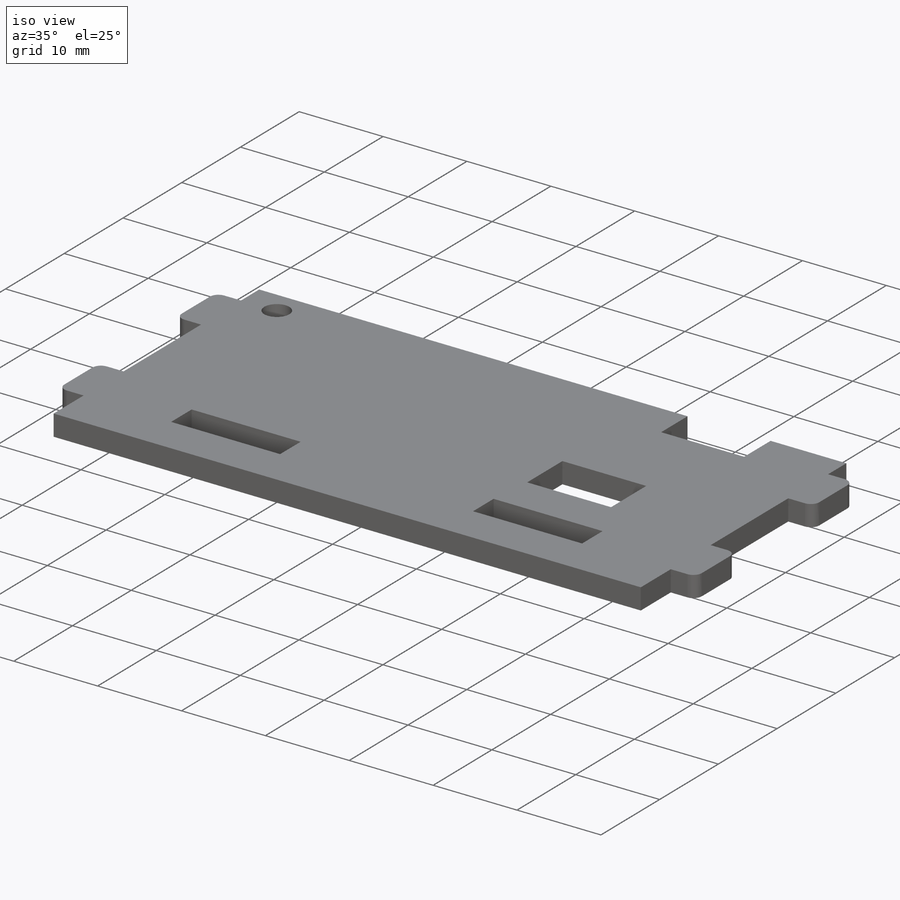
[diagram: iso view]
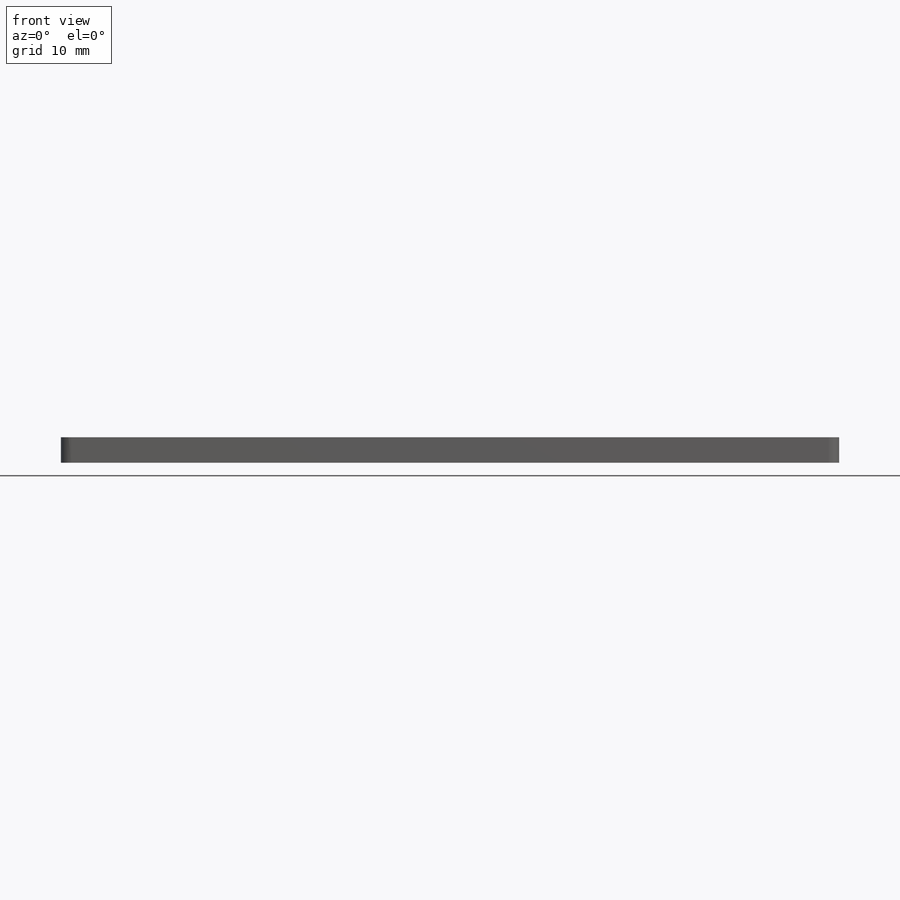
[diagram: front view]
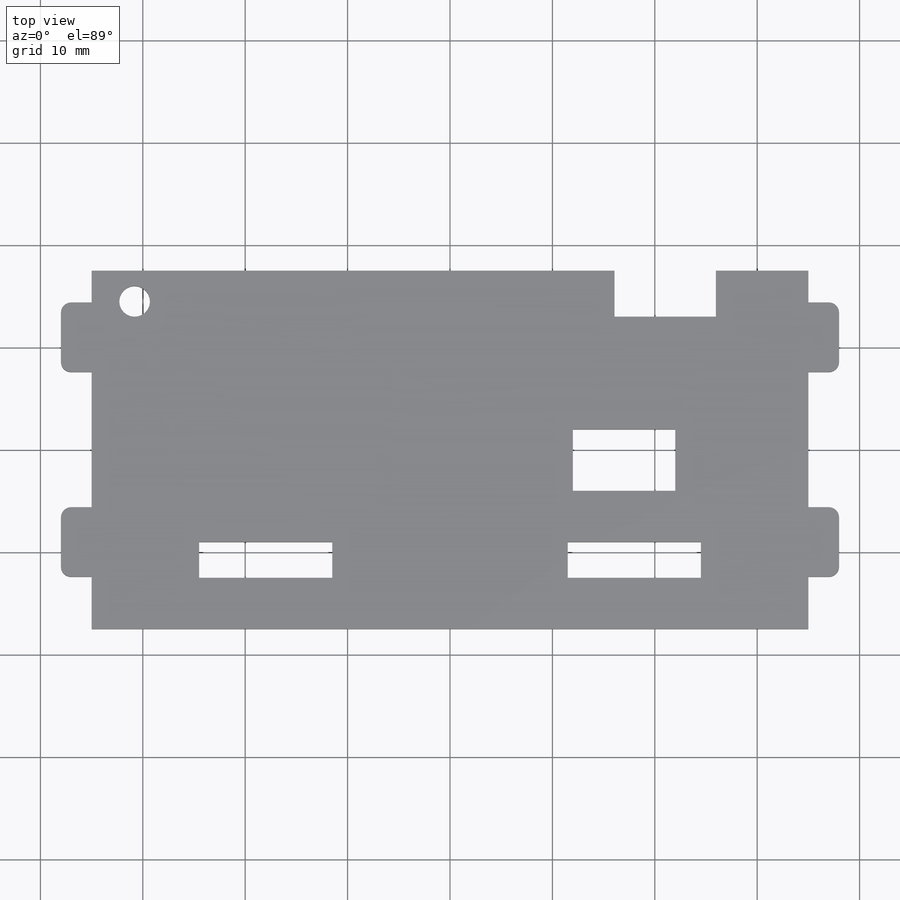
[diagram: top view]
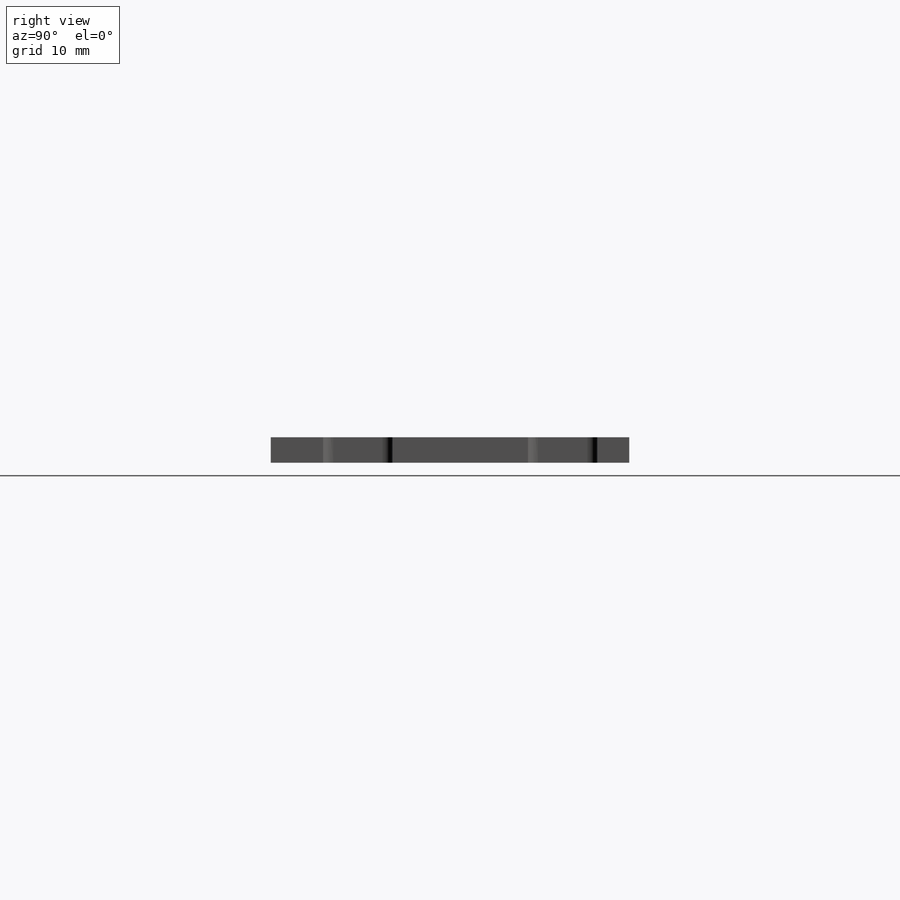
[diagram: right view]
SOLIDWORKS PART (.sldprt)
format: sldprt  version: not decoded by parser v0  size: 323,584 bytes
history: native  units: mm
features: sketch x5, cut_extrude x4, plane x3, material x1, extrude x1, fillet x1 (+10 scaffold rows collapsed)
feature tree (25):
  scaffold x10  (default folders/planes/origin — collapsed)
  material  "材质 <未指定>"
  plane  "前视"
  plane  "上视"
  plane  "右视"
  sketch  "草图1"  dims[D1=35.0mm D2=76.0mm]
  extrude  "凸台-拉伸1"  Depth=2.5mm
  sketch  "草图2"  dims[D1=5.0mm D2=13.5mm D3=13.0mm D4=3.5mm]
  cut_extrude  "切除-拉伸1"  [1 undecoded]
  sketch  "草图3"  dims[D1=3.0mm D2=5.1mm D3=3.0mm D4=3.1mm D5=3.0mm D6=6.8mm D7=6.8mm]
  cut_extrude  "切除-拉伸2"  [1 undecoded]
  fillet  "圆角1"  Radius=1mm
  sketch  "草图4"  dims[c1.D1=3.0mm c1.D2=~5.638435mm c2.D2=90.0deg c3.D2=4.2mm c3.D3=4.5mm c3.D4=9.9mm c3.D5=~9.031865mm]
  cut_extrude  "切除-拉伸3"  [1 undecoded]
  sketch  "草图5"  dims[D1=10.0mm D2=6.0mm D3=18.0mm D4=8.0mm]
  cut_extrude  "切除-拉伸4"  [1 undecoded]
decode coverage: 7 of 11 modeling features carry decoded parameters
note: ~ marks probable driven/reference dimensions
note: 4 parameter values undecoded
summary: no parameter record found for 4 features
note: suppression state not decoded; provenance and decode notes live in map.json
